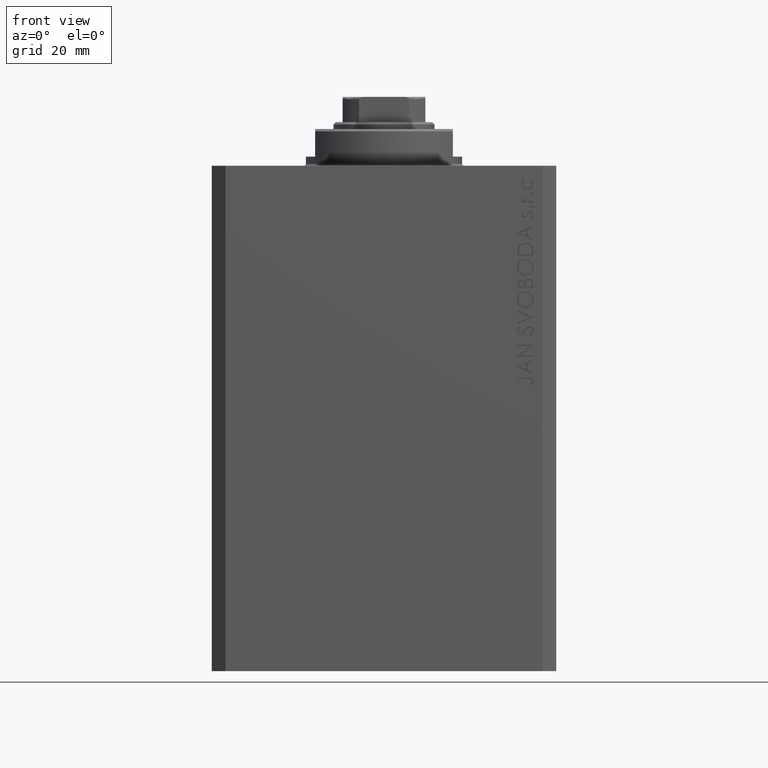
[diagram: clean part render]
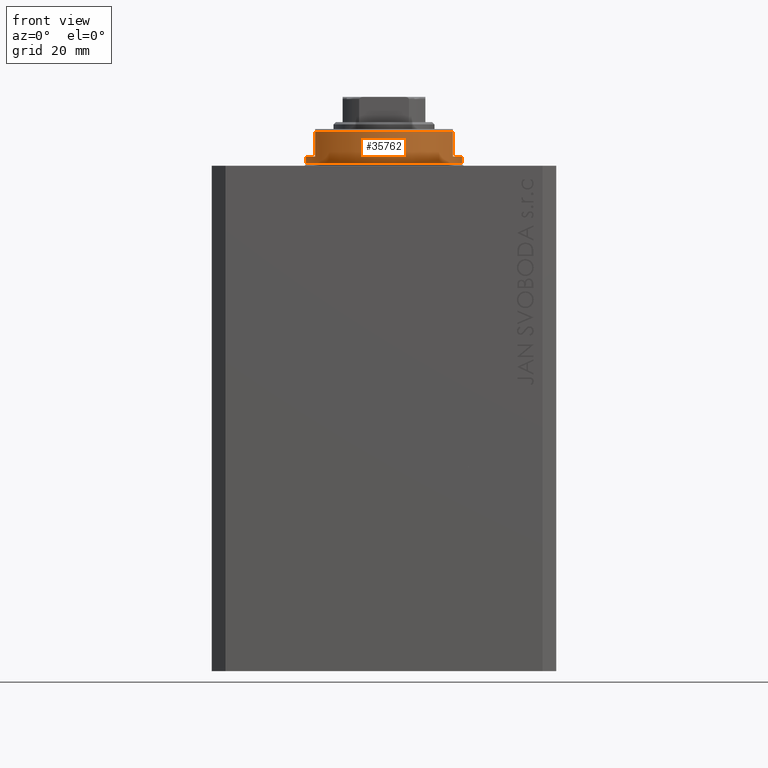
[diagram: same view with one face highlighted and labeled with its STEP entity id]
A machine part, front view. The second image highlights one B-rep face of the part: STEP entity #35762.
In plain terms, the highlighted cylindrical surface (partial cylindrical patch) has radius 17 mm, axis along (0, 0, -1).
Its self-contained STEP definition (entity closure, byte-faithful):
#156 = EDGE_CURVE ( 'NONE', #5576, #19905, #6547, .T. ) ;
#1398 = VECTOR ( 'NONE', #41809, 1000.000000000000000 ) ;
#1745 = CYLINDRICAL_SURFACE ( 'NONE', #21380, 17.00000000000000000 ) ;
#1888 = DIRECTION ( 'NONE',  ( 0.000000000000000000, 0.000000000000000000, -1.000000000000000000 ) ) ;
#3788 = CARTESIAN_POINT ( 'NONE',  ( 15.00000000000000000, -8.000000000000001776, -7.500000000000007105 ) ) ;
#3999 = DIRECTION ( 'NONE',  ( -0.000000000000000000, -0.000000000000000000, 1.000000000000000000 ) ) ;
#4097 = EDGE_CURVE ( 'NONE', #20289, #6805, #22209, .T. ) ;
#4647 = VERTEX_POINT ( 'NONE', #15769 ) ;
#4750 = ORIENTED_EDGE ( 'NONE', *, *, #33872, .F. ) ;
#4919 = CARTESIAN_POINT ( 'NONE',  ( 14.99999999999999645, -8.000000000000003553, -2.000000000000000000 ) ) ;
#4962 = DIRECTION ( 'NONE',  ( 0.000000000000000000, 0.000000000000000000, 1.000000000000000000 ) ) ;
#5576 = VERTEX_POINT ( 'NONE', #4919 ) ;
#5730 = CARTESIAN_POINT ( 'NONE',  ( -15.00000000000000000, -8.000000000000001776, -8.000000000000000000 ) ) ;
#5760 = DIRECTION ( 'NONE',  ( 0.000000000000000000, 0.000000000000000000, -1.000000000000000000 ) ) ;
#6528 = CARTESIAN_POINT ( 'NONE',  ( -15.00000000000000000, -8.000000000000001776, -7.500000000000007105 ) ) ;
#6547 = LINE ( 'NONE', #17567, #46435 ) ;
#6805 = VERTEX_POINT ( 'NONE', #21842 ) ;
#7379 = EDGE_LOOP ( 'NONE', ( #4750, #38941, #33088, #45412, #41578, #20245, #26044, #23828 ) ) ;
#8378 = EDGE_CURVE ( 'NONE', #6805, #14686, #10993, .T. ) ;
#8948 = CARTESIAN_POINT ( 'NONE',  ( 0.000000000000000000, 0.000000000000000000, -8.000000000000000000 ) ) ;
#9583 = DIRECTION ( 'NONE',  ( -0.000000000000000000, -0.000000000000000000, -1.000000000000000000 ) ) ;
#10993 = CIRCLE ( 'NONE', #26300, 17.00000000000000000 ) ;
#11745 = EDGE_CURVE ( 'NONE', #35093, #19905, #41736, .T. ) ;
#12351 = CIRCLE ( 'NONE', #29169, 17.00000000000000000 ) ;
#14686 = VERTEX_POINT ( 'NONE', #15602 ) ;
#15602 = CARTESIAN_POINT ( 'NONE',  ( -17.00000000000000000, 2.081899558550500280E-15, -0.5000000000000004441 ) ) ;
#15769 = CARTESIAN_POINT ( 'NONE',  ( -17.00000000000000000, 2.081899558550500280E-15, -2.000000000000000000 ) ) ;
#15983 = DIRECTION ( 'NONE',  ( -1.000000000000000000, 0.000000000000000000, 0.000000000000000000 ) ) ;
#17019 = DIRECTION ( 'NONE',  ( 1.000000000000000000, 0.000000000000000000, 0.000000000000000000 ) ) ;
#17567 = CARTESIAN_POINT ( 'NONE',  ( 15.00000000000000000, -8.000000000000001776, -8.000000000000000000 ) ) ;
#19823 = LINE ( 'NONE', #27702, #1398 ) ;
#19905 = VERTEX_POINT ( 'NONE', #3788 ) ;
#20245 = ORIENTED_EDGE ( 'NONE', *, *, #41325, .F. ) ;
#20270 = DIRECTION ( 'NONE',  ( 0.000000000000000000, 0.000000000000000000, -1.000000000000000000 ) ) ;
#20289 = VERTEX_POINT ( 'NONE', #32868 ) ;
#20989 = DIRECTION ( 'NONE',  ( -1.000000000000000000, 0.000000000000000000, 0.000000000000000000 ) ) ;
#21130 = AXIS2_PLACEMENT_3D ( 'NONE', #30805, #4962, #15983 ) ;
#21380 = AXIS2_PLACEMENT_3D ( 'NONE', #8948, #41487, #34074 ) ;
#21842 = CARTESIAN_POINT ( 'NONE',  ( 17.00000000000000000, 0.000000000000000000, -0.5000000000000004441 ) ) ;
#22209 = LINE ( 'NONE', #33197, #40638 ) ;
#23828 = ORIENTED_EDGE ( 'NONE', *, *, #8378, .T. ) ;
#24593 = DIRECTION ( 'NONE',  ( 0.000000000000000000, 0.000000000000000000, -1.000000000000000000 ) ) ;
#24880 = VERTEX_POINT ( 'NONE', #42615 ) ;
#25347 = CIRCLE ( 'NONE', #28375, 17.00000000000000000 ) ;
#26044 = ORIENTED_EDGE ( 'NONE', *, *, #4097, .T. ) ;
#26300 = AXIS2_PLACEMENT_3D ( 'NONE', #27774, #9583, #17019 ) ;
#27702 = CARTESIAN_POINT ( 'NONE',  ( -17.00000000000000000, 2.081899558550500280E-15, -8.000000000000000000 ) ) ;
#27774 = CARTESIAN_POINT ( 'NONE',  ( 0.000000000000000000, 0.000000000000000000, -0.5000000000000004441 ) ) ;
#28375 = AXIS2_PLACEMENT_3D ( 'NONE', #35795, #24593, #20989 ) ;
#28955 = EDGE_CURVE ( 'NONE', #24880, #35093, #34684, .T. ) ;
#29169 = AXIS2_PLACEMENT_3D ( 'NONE', #29961, #5760, #45968 ) ;
#29961 = CARTESIAN_POINT ( 'NONE',  ( 0.000000000000000000, 0.000000000000000000, -2.000000000000000000 ) ) ;
#30805 = CARTESIAN_POINT ( 'NONE',  ( 0.000000000000000000, 0.000000000000000000, -7.500000000000007105 ) ) ;
#32868 = CARTESIAN_POINT ( 'NONE',  ( 17.00000000000000000, 0.000000000000000000, -2.000000000000000000 ) ) ;
#33088 = ORIENTED_EDGE ( 'NONE', *, *, #28955, .T. ) ;
#33197 = CARTESIAN_POINT ( 'NONE',  ( 17.00000000000000000, 0.000000000000000000, -8.000000000000000000 ) ) ;
#33872 = EDGE_CURVE ( 'NONE', #4647, #14686, #19823, .T. ) ;
#34074 = DIRECTION ( 'NONE',  ( 1.000000000000000000, 0.000000000000000000, 0.000000000000000000 ) ) ;
#34684 = LINE ( 'NONE', #5730, #47122 ) ;
#35093 = VERTEX_POINT ( 'NONE', #6528 ) ;
#35762 = ADVANCED_FACE ( 'NONE', ( #45321 ), #1745, .T. ) ;
#35795 = CARTESIAN_POINT ( 'NONE',  ( 0.000000000000000000, 0.000000000000000000, -2.000000000000000000 ) ) ;
#38941 = ORIENTED_EDGE ( 'NONE', *, *, #45698, .F. ) ;
#40638 = VECTOR ( 'NONE', #3999, 1000.000000000000000 ) ;
#41325 = EDGE_CURVE ( 'NONE', #20289, #5576, #25347, .T. ) ;
#41487 = DIRECTION ( 'NONE',  ( -0.000000000000000000, -0.000000000000000000, 1.000000000000000000 ) ) ;
#41578 = ORIENTED_EDGE ( 'NONE', *, *, #156, .F. ) ;
#41736 = CIRCLE ( 'NONE', #21130, 17.00000000000000000 ) ;
#41809 = DIRECTION ( 'NONE',  ( -0.000000000000000000, -0.000000000000000000, 1.000000000000000000 ) ) ;
#42615 = CARTESIAN_POINT ( 'NONE',  ( -14.99999999999999645, -8.000000000000003553, -2.000000000000000000 ) ) ;
#45321 = FACE_OUTER_BOUND ( 'NONE', #7379, .T. ) ;
#45412 = ORIENTED_EDGE ( 'NONE', *, *, #11745, .T. ) ;
#45698 = EDGE_CURVE ( 'NONE', #24880, #4647, #12351, .T. ) ;
#45968 = DIRECTION ( 'NONE',  ( -1.000000000000000000, 0.000000000000000000, 0.000000000000000000 ) ) ;
#46435 = VECTOR ( 'NONE', #20270, 1000.000000000000000 ) ;
#47122 = VECTOR ( 'NONE', #1888, 1000.000000000000000 ) ;